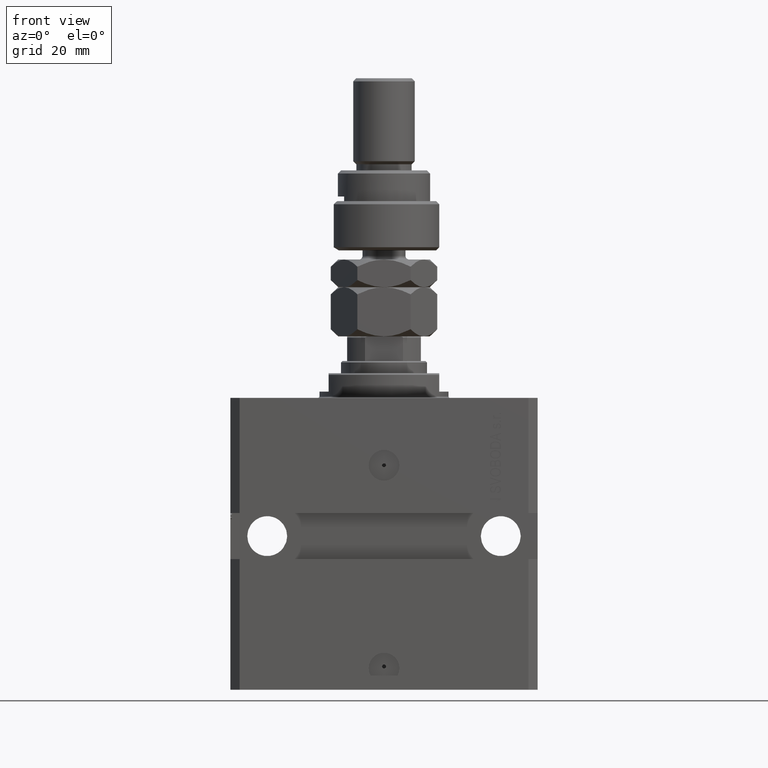
[diagram: clean part render]
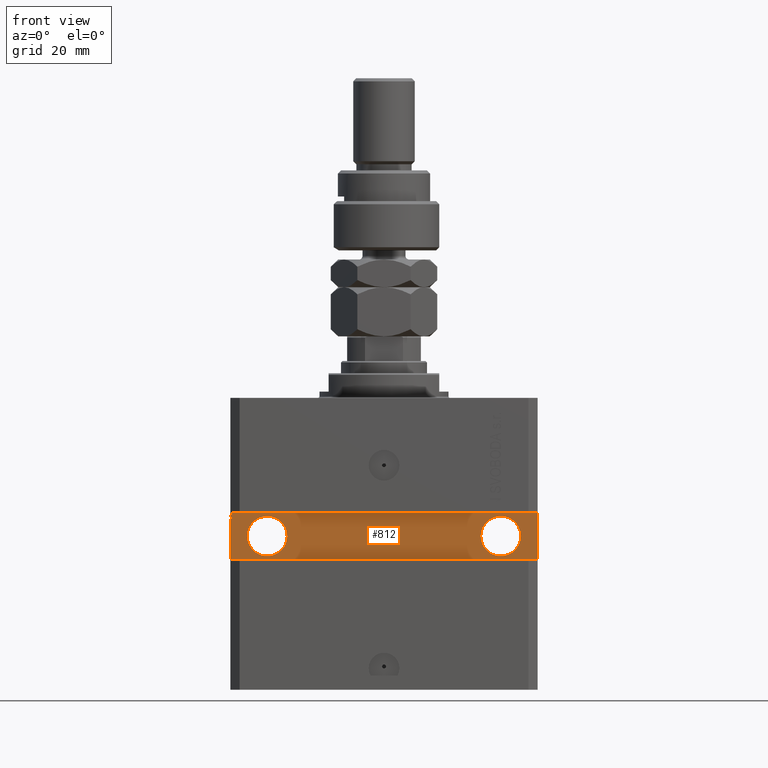
[diagram: same view with one face highlighted and labeled with its STEP entity id]
A machine part, front view. The second image highlights one B-rep face of the part: STEP entity #812.
In plain terms, the highlighted planar face has unit normal (0, -1, 0).
Its self-contained STEP definition (entity closure, byte-faithful):
#165 = DIRECTION ( 'NONE',  ( -1.000000000000000000, -1.387778780781445676E-16, -2.775557561562891351E-16 ) ) ;
#812 = ADVANCED_FACE ( 'NONE', ( #43208, #47318, #23316 ), #47818, .T. ) ;
#1142 = AXIS2_PLACEMENT_3D ( 'NONE', #7840, #27697, #42951 ) ;
#1948 = ORIENTED_EDGE ( 'NONE', *, *, #29594, .T. ) ;
#2117 = EDGE_CURVE ( 'NONE', #44404, #15609, #46286, .T. ) ;
#2436 = DIRECTION ( 'NONE',  ( 0.000000000000000000, 0.000000000000000000, -1.000000000000000000 ) ) ;
#2768 = CIRCLE ( 'NONE', #24159, 6.499999999999999112 ) ;
#3278 = DIRECTION ( 'NONE',  ( 0.000000000000000000, 0.000000000000000000, -1.000000000000000000 ) ) ;
#3336 = CARTESIAN_POINT ( 'NONE',  ( -49.50000000000001421, -32.50000000000000711, -39.43474002179300442 ) ) ;
#4148 = DIRECTION ( 'NONE',  ( -1.000000000000000000, -0.000000000000000000, -0.000000000000000000 ) ) ;
#4741 = EDGE_CURVE ( 'NONE', #11374, #35504, #40539, .T. ) ;
#5171 = DIRECTION ( 'NONE',  ( -1.000000000000000000, -0.000000000000000000, -0.000000000000000000 ) ) ;
#5186 = VERTEX_POINT ( 'NONE', #9183 ) ;
#5360 = CARTESIAN_POINT ( 'NONE',  ( 38.00000000000001421, -32.50000000000000000, -45.00000000000000000 ) ) ;
#5454 = AXIS2_PLACEMENT_3D ( 'NONE', #29526, #21284, #37016 ) ;
#5607 = DIRECTION ( 'NONE',  ( 0.000000000000000000, 0.000000000000000000, 1.000000000000000000 ) ) ;
#6038 = LINE ( 'NONE', #22039, #26069 ) ;
#6563 = AXIS2_PLACEMENT_3D ( 'NONE', #49750, #29872, #7415 ) ;
#7415 = DIRECTION ( 'NONE',  ( 1.000000000000000000, 0.000000000000000000, 0.000000000000000000 ) ) ;
#7453 = VERTEX_POINT ( 'NONE', #33137 ) ;
#7796 = CARTESIAN_POINT ( 'NONE',  ( -50.00000000000001421, -32.50000000000000711, -39.43474002179300442 ) ) ;
#7840 = CARTESIAN_POINT ( 'NONE',  ( 4.616128571667027759E-15, -32.50000000000000000, 0.000000000000000000 ) ) ;
#7919 = CARTESIAN_POINT ( 'NONE',  ( 49.99999999999999289, -32.49999999999999289, -37.49999999999997868 ) ) ;
#8136 = CARTESIAN_POINT ( 'NONE',  ( -37.99999999999998579, -32.50000000000000711, -45.00000000000000711 ) ) ;
#8174 = ORIENTED_EDGE ( 'NONE', *, *, #49376, .F. ) ;
#8525 = CARTESIAN_POINT ( 'NONE',  ( -50.00000000000001421, -32.50000000000000711, -52.50000000000000000 ) ) ;
#8671 = VERTEX_POINT ( 'NONE', #8525 ) ;
#9183 = CARTESIAN_POINT ( 'NONE',  ( -50.00000000000001421, -32.50000000000000711, -37.50000000000000711 ) ) ;
#9473 = EDGE_CURVE ( 'NONE', #24671, #48225, #41483, .T. ) ;
#10252 = CARTESIAN_POINT ( 'NONE',  ( 49.99999999999999289, -32.49999999999999289, -52.50000000000000000 ) ) ;
#11199 = DIRECTION ( 'NONE',  ( -1.000000000000000000, -0.000000000000000000, -0.000000000000000000 ) ) ;
#11374 = VERTEX_POINT ( 'NONE', #47407 ) ;
#11932 = EDGE_LOOP ( 'NONE', ( #38538, #45346 ) ) ;
#12464 = VECTOR ( 'NONE', #40096, 1000.000000000000000 ) ;
#12935 = CARTESIAN_POINT ( 'NONE',  ( -49.50000000000000711, -32.49999999999999289, -37.99999999999999289 ) ) ;
#13257 = EDGE_CURVE ( 'NONE', #20339, #50533, #45145, .T. ) ;
#13357 = DIRECTION ( 'NONE',  ( 0.000000000000000000, 0.000000000000000000, -1.000000000000000000 ) ) ;
#13536 = VECTOR ( 'NONE', #11199, 1000.000000000000000 ) ;
#13609 = DIRECTION ( 'NONE',  ( 1.000000000000000000, 0.000000000000000000, 0.000000000000000000 ) ) ;
#14216 = EDGE_CURVE ( 'NONE', #29279, #8671, #44859, .T. ) ;
#14529 = CIRCLE ( 'NONE', #5454, 6.499999999999999112 ) ;
#14789 = CARTESIAN_POINT ( 'NONE',  ( 44.50000000000001421, -32.50000000000000000, -45.00000000000000000 ) ) ;
#15164 = VECTOR ( 'NONE', #5171, 1000.000000000000000 ) ;
#15524 = LINE ( 'NONE', #31254, #41340 ) ;
#15609 = VERTEX_POINT ( 'NONE', #28598 ) ;
#15734 = VERTEX_POINT ( 'NONE', #26947 ) ;
#15906 = ORIENTED_EDGE ( 'NONE', *, *, #9473, .T. ) ;
#16353 = VECTOR ( 'NONE', #13357, 1000.000000000000000 ) ;
#16884 = ORIENTED_EDGE ( 'NONE', *, *, #40570, .F. ) ;
#17291 = EDGE_CURVE ( 'NONE', #34814, #47596, #22218, .T. ) ;
#18436 = CARTESIAN_POINT ( 'NONE',  ( -50.00000000000001421, -32.50000000000000711, -37.99999999999999289 ) ) ;
#19305 = CARTESIAN_POINT ( 'NONE',  ( -49.50000000000016342, -32.50000000000000711, -39.86910993535713743 ) ) ;
#19335 = DIRECTION ( 'NONE',  ( 1.000000000000000000, 0.000000000000000000, 0.000000000000000000 ) ) ;
#19744 = DIRECTION ( 'NONE',  ( 1.101411730780568590E-16, -1.000000000000000000, 0.000000000000000000 ) ) ;
#20339 = VERTEX_POINT ( 'NONE', #14789 ) ;
#21117 = CARTESIAN_POINT ( 'NONE',  ( -50.00000000000001421, -32.50000000000000711, -37.50000000000000711 ) ) ;
#21284 = DIRECTION ( 'NONE',  ( 8.806446732139697737E-17, -1.000000000000000000, 1.232595164407830672E-32 ) ) ;
#21387 = EDGE_CURVE ( 'NONE', #5186, #50226, #28201, .T. ) ;
#21552 = EDGE_CURVE ( 'NONE', #15734, #50226, #15524, .T. ) ;
#22039 = CARTESIAN_POINT ( 'NONE',  ( -49.50000000000000711, -32.49999999999999289, -37.62144886363635976 ) ) ;
#22218 = CIRCLE ( 'NONE', #6563, 6.499999999999999112 ) ;
#22594 = CARTESIAN_POINT ( 'NONE',  ( 49.99999999999999289, -32.49999999999999289, -37.49999999999997868 ) ) ;
#22632 = CARTESIAN_POINT ( 'NONE',  ( -50.00000000000001421, -32.50000000000000711, -37.50000000000000711 ) ) ;
#23316 = FACE_OUTER_BOUND ( 'NONE', #43340, .T. ) ;
#23461 = CARTESIAN_POINT ( 'NONE',  ( -50.00000000000001421, -32.50000000000000711, -37.62144886363636687 ) ) ;
#23805 = ORIENTED_EDGE ( 'NONE', *, *, #28844, .F. ) ;
#24159 = AXIS2_PLACEMENT_3D ( 'NONE', #8136, #19744, #46852 ) ;
#24335 = CARTESIAN_POINT ( 'NONE',  ( -50.00000000000001421, -32.50000000000000711, -37.50000000000000711 ) ) ;
#24671 = VERTEX_POINT ( 'NONE', #40440 ) ;
#24702 = ORIENTED_EDGE ( 'NONE', *, *, #37698, .T. ) ;
#24786 = VECTOR ( 'NONE', #19335, 1000.000000000000000 ) ;
#25503 = ORIENTED_EDGE ( 'NONE', *, *, #4741, .T. ) ;
#26069 = VECTOR ( 'NONE', #2436, 1000.000000000000000 ) ;
#26804 = ORIENTED_EDGE ( 'NONE', *, *, #35568, .T. ) ;
#26947 = CARTESIAN_POINT ( 'NONE',  ( -49.50000000000000711, -32.50000000000000711, -37.62144886363635976 ) ) ;
#27247 = VECTOR ( 'NONE', #3278, 1000.000000000000000 ) ;
#27255 = CARTESIAN_POINT ( 'NONE',  ( 31.50000000000001421, -32.50000000000000000, -45.00000000000000000 ) ) ;
#27697 = DIRECTION ( 'NONE',  ( 1.387778780781445676E-16, -1.000000000000000000, 0.000000000000000000 ) ) ;
#28201 = LINE ( 'NONE', #24335, #12464 ) ;
#28410 = ORIENTED_EDGE ( 'NONE', *, *, #2117, .F. ) ;
#28598 = CARTESIAN_POINT ( 'NONE',  ( -50.00000000000001421, -32.50000000000000711, -38.87066340383893959 ) ) ;
#28844 = EDGE_CURVE ( 'NONE', #7453, #44404, #31410, .T. ) ;
#28967 = CARTESIAN_POINT ( 'NONE',  ( -31.49999999999998579, -32.50000000000000711, -45.00000000000000711 ) ) ;
#29279 = VERTEX_POINT ( 'NONE', #7796 ) ;
#29526 = CARTESIAN_POINT ( 'NONE',  ( 38.00000000000001421, -32.50000000000000000, -45.00000000000000000 ) ) ;
#29587 = DIRECTION ( 'NONE',  ( 8.806446732139697737E-17, -1.000000000000000000, 1.232595164407830672E-32 ) ) ;
#29594 = EDGE_CURVE ( 'NONE', #48225, #5186, #31914, .T. ) ;
#29872 = DIRECTION ( 'NONE',  ( 1.101411730780568590E-16, -1.000000000000000000, 0.000000000000000000 ) ) ;
#30064 = CARTESIAN_POINT ( 'NONE',  ( -49.49999999999977973, -32.50000000000000711, -38.87066337907741342 ) ) ;
#30652 = DIRECTION ( 'NONE',  ( 3.791485858024926499E-13, 5.261743621399925654E-29, 1.000000000000000000 ) ) ;
#30806 = CARTESIAN_POINT ( 'NONE',  ( -49.50000000000001421, -32.50000000000001421, -38.87066340383893959 ) ) ;
#31132 = LINE ( 'NONE', #22632, #27247 ) ;
#31254 = CARTESIAN_POINT ( 'NONE',  ( -49.50000000000000711, -32.49999999999999289, -37.62144886363635976 ) ) ;
#31410 = LINE ( 'NONE', #19305, #38202 ) ;
#31914 = LINE ( 'NONE', #7919, #39053 ) ;
#32660 = VECTOR ( 'NONE', #5607, 1000.000000000000000 ) ;
#32883 = CARTESIAN_POINT ( 'NONE',  ( -44.49999999999998579, -32.50000000000000711, -45.00000000000000711 ) ) ;
#33137 = CARTESIAN_POINT ( 'NONE',  ( -49.49999999999999289, -32.50000000000000711, -39.43474004052496440 ) ) ;
#34413 = EDGE_CURVE ( 'NONE', #50533, #20339, #14529, .T. ) ;
#34571 = LINE ( 'NONE', #3336, #24786 ) ;
#34814 = VERTEX_POINT ( 'NONE', #28967 ) ;
#35504 = VERTEX_POINT ( 'NONE', #18436 ) ;
#35568 = EDGE_CURVE ( 'NONE', #15734, #11374, #6038, .T. ) ;
#36545 = LINE ( 'NONE', #48162, #46936 ) ;
#37016 = DIRECTION ( 'NONE',  ( 1.000000000000000000, 0.000000000000000000, 0.000000000000000000 ) ) ;
#37698 = EDGE_CURVE ( 'NONE', #8671, #24671, #36545, .T. ) ;
#38202 = VECTOR ( 'NONE', #30652, 1000.000000000000000 ) ;
#38538 = ORIENTED_EDGE ( 'NONE', *, *, #13257, .F. ) ;
#38921 = ORIENTED_EDGE ( 'NONE', *, *, #40781, .T. ) ;
#39053 = VECTOR ( 'NONE', #165, 1000.000000000000000 ) ;
#39329 = ORIENTED_EDGE ( 'NONE', *, *, #21552, .F. ) ;
#39360 = AXIS2_PLACEMENT_3D ( 'NONE', #5360, #29587, #13609 ) ;
#39713 = ORIENTED_EDGE ( 'NONE', *, *, #21387, .T. ) ;
#40096 = DIRECTION ( 'NONE',  ( 0.000000000000000000, 0.000000000000000000, -1.000000000000000000 ) ) ;
#40175 = DIRECTION ( 'NONE',  ( 1.000000000000000000, 1.387778780781445676E-16, 0.000000000000000000 ) ) ;
#40440 = CARTESIAN_POINT ( 'NONE',  ( 49.99999999999999289, -32.49999999999999289, -52.50000000000000000 ) ) ;
#40539 = LINE ( 'NONE', #12935, #15164 ) ;
#40570 = EDGE_CURVE ( 'NONE', #29279, #7453, #34571, .T. ) ;
#40781 = EDGE_CURVE ( 'NONE', #35504, #15609, #31132, .T. ) ;
#41340 = VECTOR ( 'NONE', #4148, 1000.000000000000000 ) ;
#41483 = LINE ( 'NONE', #10252, #32660 ) ;
#42951 = DIRECTION ( 'NONE',  ( 1.000000000000000000, 1.387778780781445676E-16, 0.000000000000000000 ) ) ;
#43124 = ORIENTED_EDGE ( 'NONE', *, *, #14216, .T. ) ;
#43208 = FACE_BOUND ( 'NONE', #11932, .T. ) ;
#43340 = EDGE_LOOP ( 'NONE', ( #38921, #28410, #23805, #16884, #43124, #24702, #15906, #1948, #39713, #39329, #26804, #25503 ) ) ;
#44404 = VERTEX_POINT ( 'NONE', #30064 ) ;
#44859 = LINE ( 'NONE', #21117, #16353 ) ;
#45145 = CIRCLE ( 'NONE', #39360, 6.499999999999999112 ) ;
#45207 = ORIENTED_EDGE ( 'NONE', *, *, #17291, .F. ) ;
#45346 = ORIENTED_EDGE ( 'NONE', *, *, #34413, .F. ) ;
#46286 = LINE ( 'NONE', #30806, #13536 ) ;
#46852 = DIRECTION ( 'NONE',  ( 1.000000000000000000, 0.000000000000000000, 0.000000000000000000 ) ) ;
#46936 = VECTOR ( 'NONE', #40175, 1000.000000000000000 ) ;
#47318 = FACE_BOUND ( 'NONE', #49599, .T. ) ;
#47407 = CARTESIAN_POINT ( 'NONE',  ( -49.50000000000000711, -32.50000000000000711, -37.99999999999999289 ) ) ;
#47596 = VERTEX_POINT ( 'NONE', #32883 ) ;
#47818 = PLANE ( 'NONE',  #1142 ) ;
#48162 = CARTESIAN_POINT ( 'NONE',  ( -50.00000000000001421, -32.50000000000000711, -52.50000000000000000 ) ) ;
#48225 = VERTEX_POINT ( 'NONE', #22594 ) ;
#49376 = EDGE_CURVE ( 'NONE', #47596, #34814, #2768, .T. ) ;
#49599 = EDGE_LOOP ( 'NONE', ( #45207, #8174 ) ) ;
#49750 = CARTESIAN_POINT ( 'NONE',  ( -37.99999999999998579, -32.50000000000000711, -45.00000000000000711 ) ) ;
#50226 = VERTEX_POINT ( 'NONE', #23461 ) ;
#50533 = VERTEX_POINT ( 'NONE', #27255 ) ;